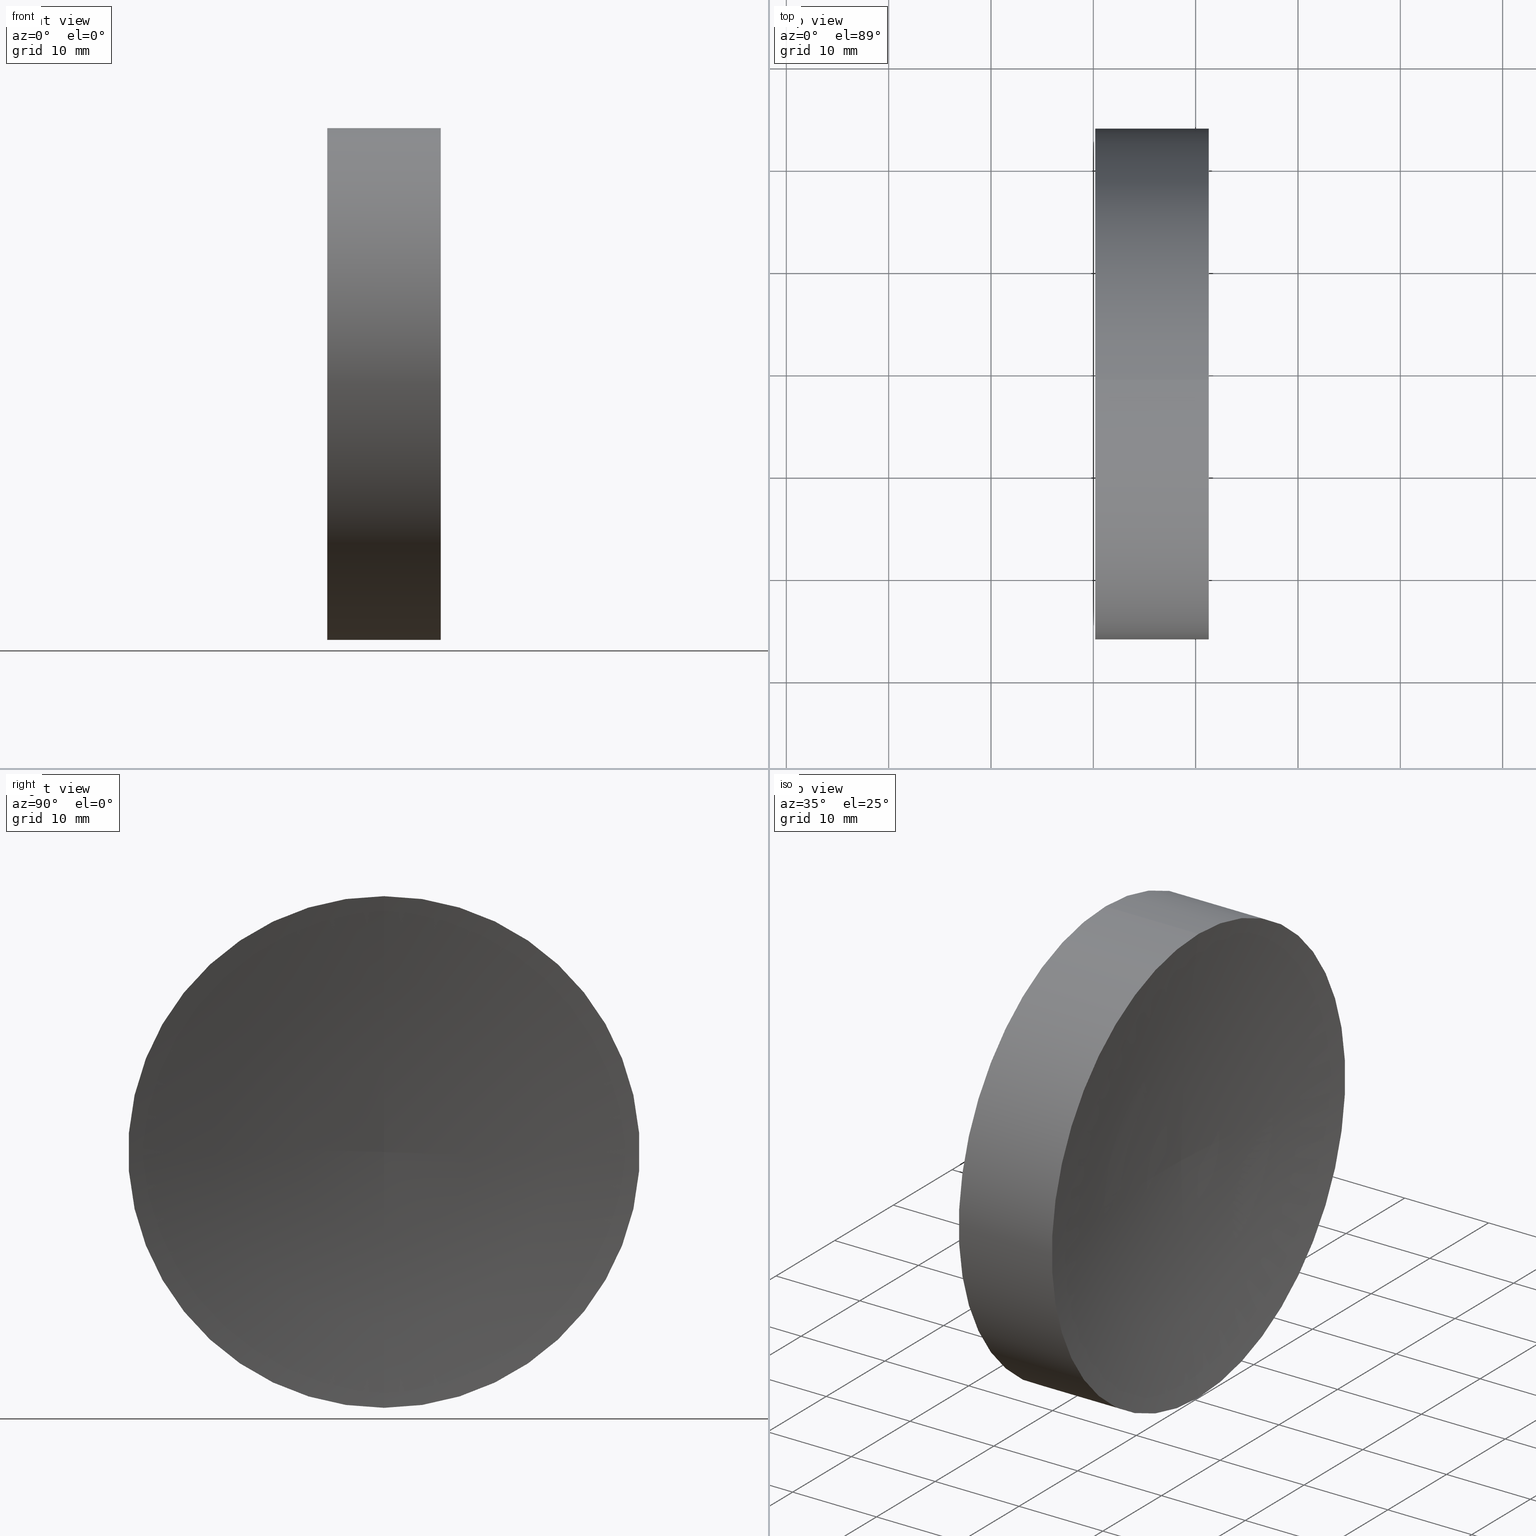
[diagram: canonical four-view strip — front | top / right | iso, engineering-drawing reading convention]
A machine part, canonical four-view strip (front | top / right | iso — engineering-drawing reading convention). The complete STEP part file that produces these views, byte-faithful:
ISO-10303-21;
HEADER;
FILE_DESCRIPTION (( 'STEP AP214' ),
    '1' );
FILE_NAME ('270043.STEP',
    '2019-07-23T03:05:12',
    ( '' ),
    ( '' ),
    'SwSTEP 2.0',
    'SolidWorks 2016',
    '' );
FILE_SCHEMA (( 'AUTOMOTIVE_DESIGN' ));
ENDSEC;

DATA;
#1 = PRODUCT ( '270043', '270043', '', ( #72 ) ) ;
#2 = EDGE_CURVE ( 'NONE', #53, #137, #60, .T. ) ;
#3 = DIRECTION ( 'NONE',  ( 0.0000000000000000000, 0.0000000000000000000, 1.000000000000000000 ) ) ;
#4 = AXIS2_PLACEMENT_3D ( 'NONE', #16, #42, #136 ) ;
#5 = VERTEX_POINT ( 'NONE', #29 ) ;
#6 = PRESENTATION_STYLE_ASSIGNMENT (( #86 ) ) ;
#7 = DIRECTION ( 'NONE',  ( 0.0000000000000000000, 0.0000000000000000000, 1.000000000000000000 ) ) ;
#8 = FILL_AREA_STYLE_COLOUR ( '', #165 ) ;
#9 = PRESENTATION_LAYER_ASSIGNMENT (  '', '', ( #34 ) ) ;
#10 = CARTESIAN_POINT ( 'NONE',  ( 230.1853110698390300, 138.7560422467448700, 0.0000000000000000000 ) ) ;
#11 = CIRCLE ( 'NONE', #107, 24.99999999999999300 ) ;
#12 = ORIENTED_EDGE ( 'NONE', *, *, #93, .T. ) ;
#13 =( GEOMETRIC_REPRESENTATION_CONTEXT ( 3 ) GLOBAL_UNCERTAINTY_ASSIGNED_CONTEXT ( ( #140 ) ) GLOBAL_UNIT_ASSIGNED_CONTEXT ( ( #102, #38, #131 ) ) REPRESENTATION_CONTEXT ( 'NONE', 'WORKASPACE' ) );
#14 = FACE_OUTER_BOUND ( 'NONE', #117, .T. ) ;
#15 = ORIENTED_EDGE ( 'NONE', *, *, #70, .T. ) ;
#16 = CARTESIAN_POINT ( 'NONE',  ( 230.1853110698390300, 138.7560422467448700, 0.0000000000000000000 ) ) ;
#17 = CARTESIAN_POINT ( 'NONE',  ( 217.9702860043302100, 138.7560422467448700, 0.0000000000000000000 ) ) ;
#18 = DIRECTION ( 'NONE',  ( -1.000000000000000000, -0.0000000000000000000, -0.0000000000000000000 ) ) ;
#19 = DIRECTION ( 'NONE',  ( -1.000000000000000000, -0.0000000000000000000, -0.0000000000000000000 ) ) ;
#20 = DIRECTION ( 'NONE',  ( -1.000000000000000000, -0.0000000000000000000, -0.0000000000000000000 ) ) ;
#21 = ORIENTED_EDGE ( 'NONE', *, *, #2, .T. ) ;
#22 = DIRECTION ( 'NONE',  ( -1.000000000000000000, -0.0000000000000000000, -0.0000000000000000000 ) ) ;
#23 = DIRECTION ( 'NONE',  ( -1.000000000000000000, -0.0000000000000000000, -0.0000000000000000000 ) ) ;
#24 = PRODUCT_RELATED_PRODUCT_CATEGORY ( 'part', '', ( #1 ) ) ;
#25 = DIRECTION ( 'NONE',  ( 0.0000000000000000000, 0.0000000000000000000, 1.000000000000000000 ) ) ;
#26 = APPLICATION_CONTEXT ( 'automotive_design' ) ;
#27 = ADVANCED_FACE ( 'NONE', ( #99 ), #147, .F. ) ;
#28 = DIRECTION ( 'NONE',  ( 1.000000000000000000, 0.0000000000000000000, 0.0000000000000000000 ) ) ;
#29 = CARTESIAN_POINT ( 'NONE',  ( 241.2833154481886300, 138.7560422467448700, -24.99999999999999300 ) ) ;
#30 = CLOSED_SHELL ( 'NONE', ( #119, #150, #27, #104, #50 ) ) ;
#31 = AXIS2_PLACEMENT_3D ( 'NONE', #47, #151, #149 ) ;
#32 = SHAPE_DEFINITION_REPRESENTATION ( #69, #56 ) ;
#33 = LINE ( 'NONE', #80, #158 ) ;
#34 = STYLED_ITEM ( 'NONE', ( #148 ), #128 ) ;
#35 = CARTESIAN_POINT ( 'NONE',  ( 389.1853088740783700, 138.7560422467448700, -6.812960362534425900E-006 ) ) ;
#36 = SURFACE_SIDE_STYLE ('',( #57 ) ) ;
#37 = PRODUCT_DEFINITION ( 'δ֪', '', #61, #39 ) ;
#38 =( NAMED_UNIT ( * ) PLANE_ANGLE_UNIT ( ) SI_UNIT ( $, .RADIAN. ) );
#39 = PRODUCT_DEFINITION_CONTEXT ( 'detailed design', #26, 'design' ) ;
#40 = EDGE_CURVE ( 'NONE', #5, #146, #134, .T. ) ;
#41 = VECTOR ( 'NONE', #18, 1000.000000000000000 ) ;
#42 = DIRECTION ( 'NONE',  ( 1.000000000000000000, 0.0000000000000000000, 0.0000000000000000000 ) ) ;
#43 = CARTESIAN_POINT ( 'NONE',  ( 389.1853088740783700, 138.7560422467448700, 6.812960362534425900E-006 ) ) ;
#44 = ORIENTED_EDGE ( 'NONE', *, *, #90, .F. ) ;
#45 = DIRECTION ( 'NONE',  ( -1.000000000000000000, -0.0000000000000000000, -0.0000000000000000000 ) ) ;
#46 = DIRECTION ( 'NONE',  ( 0.0000000000000000000, 0.0000000000000000000, 1.000000000000000000 ) ) ;
#47 = CARTESIAN_POINT ( 'NONE',  ( 389.1853088740783700, 138.7560422467448700, 0.0000000000000000000 ) ) ;
#48 =( NAMED_UNIT ( * ) SI_UNIT ( $, .STERADIAN. ) SOLID_ANGLE_UNIT ( ) );
#49 = CARTESIAN_POINT ( 'NONE',  ( 0.0000000000000000000, 0.0000000000000000000, 0.0000000000000000000 ) ) ;
#50 = ADVANCED_FACE ( 'NONE', ( #163 ), #124, .F. ) ;
#51 = CIRCLE ( 'NONE', #101, 24.99999999999999300 ) ;
#52 = AXIS2_PLACEMENT_3D ( 'NONE', #17, #160, #141 ) ;
#53 = VERTEX_POINT ( 'NONE', #110 ) ;
#54 = CARTESIAN_POINT ( 'NONE',  ( 230.1853110698390300, 138.7560422467448700, 0.0000000000000000000 ) ) ;
#55 = CARTESIAN_POINT ( 'NONE',  ( 241.2833154481886300, 138.7560422467448700, 0.0000000000000000000 ) ) ;
#56 = ADVANCED_BREP_SHAPE_REPRESENTATION ( '270043', ( #128, #138 ), #13 ) ;
#57 = SURFACE_STYLE_FILL_AREA ( #116 ) ;
#58 = MECHANICAL_DESIGN_GEOMETRIC_PRESENTATION_REPRESENTATION (  '', ( #34 ), #88 ) ;
#59 = SURFACE_SIDE_STYLE ('',( #75 ) ) ;
#60 = CIRCLE ( 'NONE', #161, 24.99999999999999300 ) ;
#61 = PRODUCT_DEFINITION_FORMATION_WITH_SPECIFIED_SOURCE ( '�κ�', '', #1, .NOT_KNOWN. ) ;
#62 = APPLICATION_CONTEXT ( 'automotive_design' ) ;
#63 = CYLINDRICAL_SURFACE ( 'NONE', #109, 24.99999999999999300 ) ;
#64 = CARTESIAN_POINT ( 'NONE',  ( 389.1853088740783700, 138.7560422467448700, 0.0000000000000000000 ) ) ;
#65 = EDGE_CURVE ( 'NONE', #5, #89, #135, .T. ) ;
#66 = AXIS2_PLACEMENT_3D ( 'NONE', #64, #74, #91 ) ;
#67 = CARTESIAN_POINT ( 'NONE',  ( 217.9702860043302100, 138.7560422467448700, 0.0000000000000000000 ) ) ;
#68 = APPLICATION_PROTOCOL_DEFINITION ( 'draft international standard', 'automotive_design', 1998, #62 ) ;
#69 = PRODUCT_DEFINITION_SHAPE ( 'NONE', 'NONE',  #37 ) ;
#70 = EDGE_CURVE ( 'NONE', #89, #5, #51, .T. ) ;
#71 = FACE_OUTER_BOUND ( 'NONE', #159, .T. ) ;
#72 = PRODUCT_CONTEXT ( 'NONE', #62, 'mechanical' ) ;
#73 = STYLED_ITEM ( 'NONE', ( #6 ), #56 ) ;
#74 = DIRECTION ( 'NONE',  ( -1.000000000000000000, -0.0000000000000000000, -0.0000000000000000000 ) ) ;
#75 = SURFACE_STYLE_FILL_AREA ( #164 ) ;
#76 = ORIENTED_EDGE ( 'NONE', *, *, #154, .F. ) ;
#77 = EDGE_CURVE ( 'NONE', #89, #146, #82, .T. ) ;
#78 = UNCERTAINTY_MEASURE_WITH_UNIT (LENGTH_MEASURE( 1.000000000000000100E-005 ), #162, 'distance_accuracy_value', 'NONE');
#79 = CARTESIAN_POINT ( 'NONE',  ( 241.2833154481886300, 138.7560422467448700, 24.99999999999999300 ) ) ;
#80 = CARTESIAN_POINT ( 'NONE',  ( 217.9702860043302100, 138.7560422467448700, -24.99999999999999300 ) ) ;
#81 = DIRECTION ( 'NONE',  ( 0.0000000000000000000, 0.0000000000000000000, 1.000000000000000000 ) ) ;
#82 = CIRCLE ( 'NONE', #144, 150.0000000000000300 ) ;
#83 = EDGE_LOOP ( 'NONE', ( #44, #145, #12, #95 ) ) ;
#84 =( LENGTH_UNIT ( ) NAMED_UNIT ( * ) SI_UNIT ( .MILLI., .METRE. ) );
#85 = SURFACE_STYLE_USAGE ( .BOTH. , #36 ) ;
#86 = SURFACE_STYLE_USAGE ( .BOTH. , #59 ) ;
#87 = CARTESIAN_POINT ( 'NONE',  ( 239.1853088740785200, 138.7560422467448700, 0.0000000000000000000 ) ) ;
#88 =( GEOMETRIC_REPRESENTATION_CONTEXT ( 3 ) GLOBAL_UNCERTAINTY_ASSIGNED_CONTEXT ( ( #78 ) ) GLOBAL_UNIT_ASSIGNED_CONTEXT ( ( #162, #129, #48 ) ) REPRESENTATION_CONTEXT ( 'NONE', 'WORKASPACE' ) );
#89 = VERTEX_POINT ( 'NONE', #79 ) ;
#90 = EDGE_CURVE ( 'NONE', #5, #53, #33, .T. ) ;
#91 = DIRECTION ( 'NONE',  ( 0.0000000000000000000, 0.0000000000000000000, 1.000000000000000000 ) ) ;
#92 = CYLINDRICAL_SURFACE ( 'NONE', #52, 24.99999999999999300 ) ;
#93 = EDGE_CURVE ( 'NONE', #89, #137, #103, .T. ) ;
#94 = DIRECTION ( 'NONE',  ( -0.0000000000000000000, 1.000000000000000000, 1.224646799147353200E-016 ) ) ;
#95 = ORIENTED_EDGE ( 'NONE', *, *, #2, .F. ) ;
#96 = CARTESIAN_POINT ( 'NONE',  ( 217.9702860043302100, 138.7560422467448700, 24.99999999999999300 ) ) ;
#97 = DIRECTION ( 'NONE',  ( 0.0000000000000000000, 0.0000000000000000000, -1.000000000000000000 ) ) ;
#98 = COLOUR_RGB ( '',1.000000000000000000, 1.000000000000000000, 1.000000000000000000 ) ;
#99 = FACE_OUTER_BOUND ( 'NONE', #139, .T. ) ;
#100 =( NAMED_UNIT ( * ) PLANE_ANGLE_UNIT ( ) SI_UNIT ( $, .RADIAN. ) );
#101 = AXIS2_PLACEMENT_3D ( 'NONE', #55, #19, #157 ) ;
#102 =( LENGTH_UNIT ( ) NAMED_UNIT ( * ) SI_UNIT ( .MILLI., .METRE. ) );
#103 = LINE ( 'NONE', #96, #41 ) ;
#104 = ADVANCED_FACE ( 'NONE', ( #132 ), #63, .T. ) ;
#105 = PRESENTATION_LAYER_ASSIGNMENT (  '', '', ( #73 ) ) ;
#106 = EDGE_LOOP ( 'NONE', ( #142, #21 ) ) ;
#107 = AXIS2_PLACEMENT_3D ( 'NONE', #10, #23, #7 ) ;
#108 = ORIENTED_EDGE ( 'NONE', *, *, #77, .F. ) ;
#109 = AXIS2_PLACEMENT_3D ( 'NONE', #67, #22, #46 ) ;
#110 = CARTESIAN_POINT ( 'NONE',  ( 230.1853110698390300, 138.7560422467448700, -24.99999999999999300 ) ) ;
#111 = UNCERTAINTY_MEASURE_WITH_UNIT (LENGTH_MEASURE( 1.000000000000000100E-005 ), #84, 'distance_accuracy_value', 'NONE');
#112 = DIRECTION ( 'NONE',  ( 0.0000000000000000000, -1.850371707708593800E-016, 1.000000000000000000 ) ) ;
#113 =( GEOMETRIC_REPRESENTATION_CONTEXT ( 3 ) GLOBAL_UNCERTAINTY_ASSIGNED_CONTEXT ( ( #111 ) ) GLOBAL_UNIT_ASSIGNED_CONTEXT ( ( #84, #100, #121 ) ) REPRESENTATION_CONTEXT ( 'NONE', 'WORKASPACE' ) );
#114 = AXIS2_PLACEMENT_3D ( 'NONE', #156, #45, #81 ) ;
#115 = ORIENTED_EDGE ( 'NONE', *, *, #40, .T. ) ;
#116 = FILL_AREA_STYLE ('',( #8 ) ) ;
#117 = EDGE_LOOP ( 'NONE', ( #127, #115, #108 ) ) ;
#118 = FILL_AREA_STYLE_COLOUR ( '', #98 ) ;
#119 = ADVANCED_FACE ( 'NONE', ( #71 ), #92, .T. ) ;
#120 = APPLICATION_PROTOCOL_DEFINITION ( 'draft international standard', 'automotive_design', 1998, #26 ) ;
#121 =( NAMED_UNIT ( * ) SI_UNIT ( $, .STERADIAN. ) SOLID_ANGLE_UNIT ( ) );
#122 = MECHANICAL_DESIGN_GEOMETRIC_PRESENTATION_REPRESENTATION (  '', ( #73 ), #113 ) ;
#123 = ORIENTED_EDGE ( 'NONE', *, *, #70, .F. ) ;
#124 = PLANE ( 'NONE',  #4 ) ;
#125 = DIRECTION ( 'NONE',  ( 0.0000000000000000000, -1.000000000000000000, 0.0000000000000000000 ) ) ;
#126 = TOROIDAL_SURFACE ( 'NONE', #31, -6.812960362534425900E-006, 150.0000000000000300 ) ;
#127 = ORIENTED_EDGE ( 'NONE', *, *, #65, .F. ) ;
#128 = MANIFOLD_SOLID_BREP ( '��ת1', #30 ) ;
#129 =( NAMED_UNIT ( * ) PLANE_ANGLE_UNIT ( ) SI_UNIT ( $, .RADIAN. ) );
#130 = AXIS2_PLACEMENT_3D ( 'NONE', #43, #94, #112 ) ;
#131 =( NAMED_UNIT ( * ) SI_UNIT ( $, .STERADIAN. ) SOLID_ANGLE_UNIT ( ) );
#132 = FACE_OUTER_BOUND ( 'NONE', #83, .T. ) ;
#133 = ORIENTED_EDGE ( 'NONE', *, *, #40, .F. ) ;
#134 = CIRCLE ( 'NONE', #130, 150.0000000000000300 ) ;
#135 = CIRCLE ( 'NONE', #114, 24.99999999999999300 ) ;
#136 = DIRECTION ( 'NONE',  ( 0.0000000000000000000, 0.0000000000000000000, -1.000000000000000000 ) ) ;
#137 = VERTEX_POINT ( 'NONE', #143 ) ;
#138 = AXIS2_PLACEMENT_3D ( 'NONE', #49, #25, #28 ) ;
#139 = EDGE_LOOP ( 'NONE', ( #133, #123, #155 ) ) ;
#140 = UNCERTAINTY_MEASURE_WITH_UNIT (LENGTH_MEASURE( 1.000000000000000100E-005 ), #102, 'distance_accuracy_value', 'NONE');
#141 = DIRECTION ( 'NONE',  ( 0.0000000000000000000, 0.0000000000000000000, 1.000000000000000000 ) ) ;
#142 = ORIENTED_EDGE ( 'NONE', *, *, #154, .T. ) ;
#143 = CARTESIAN_POINT ( 'NONE',  ( 230.1853110698390300, 138.7560422467448700, 24.99999999999999300 ) ) ;
#144 = AXIS2_PLACEMENT_3D ( 'NONE', #35, #125, #97 ) ;
#145 = ORIENTED_EDGE ( 'NONE', *, *, #65, .T. ) ;
#146 = VERTEX_POINT ( 'NONE', #87 ) ;
#147 = TOROIDAL_SURFACE ( 'NONE', #66, -6.812960362534425900E-006, 150.0000000000000300 ) ;
#148 = PRESENTATION_STYLE_ASSIGNMENT (( #85 ) ) ;
#149 = DIRECTION ( 'NONE',  ( 0.0000000000000000000, 0.0000000000000000000, 1.000000000000000000 ) ) ;
#150 = ADVANCED_FACE ( 'NONE', ( #14 ), #126, .F. ) ;
#151 = DIRECTION ( 'NONE',  ( -1.000000000000000000, -0.0000000000000000000, -0.0000000000000000000 ) ) ;
#152 = ORIENTED_EDGE ( 'NONE', *, *, #93, .F. ) ;
#153 = DIRECTION ( 'NONE',  ( -1.000000000000000000, -0.0000000000000000000, -0.0000000000000000000 ) ) ;
#154 = EDGE_CURVE ( 'NONE', #137, #53, #11, .T. ) ;
#155 = ORIENTED_EDGE ( 'NONE', *, *, #77, .T. ) ;
#156 = CARTESIAN_POINT ( 'NONE',  ( 241.2833154481886300, 138.7560422467448700, 0.0000000000000000000 ) ) ;
#157 = DIRECTION ( 'NONE',  ( 0.0000000000000000000, 0.0000000000000000000, 1.000000000000000000 ) ) ;
#158 = VECTOR ( 'NONE', #20, 1000.000000000000000 ) ;
#159 = EDGE_LOOP ( 'NONE', ( #15, #166, #76, #152 ) ) ;
#160 = DIRECTION ( 'NONE',  ( -1.000000000000000000, -0.0000000000000000000, -0.0000000000000000000 ) ) ;
#161 = AXIS2_PLACEMENT_3D ( 'NONE', #54, #153, #3 ) ;
#162 =( LENGTH_UNIT ( ) NAMED_UNIT ( * ) SI_UNIT ( .MILLI., .METRE. ) );
#163 = FACE_OUTER_BOUND ( 'NONE', #106, .T. ) ;
#164 = FILL_AREA_STYLE ('',( #118 ) ) ;
#165 = COLOUR_RGB ( '',1.000000000000000000, 1.000000000000000000, 1.000000000000000000 ) ;
#166 = ORIENTED_EDGE ( 'NONE', *, *, #90, .T. ) ;
ENDSEC;
END-ISO-10303-21;
